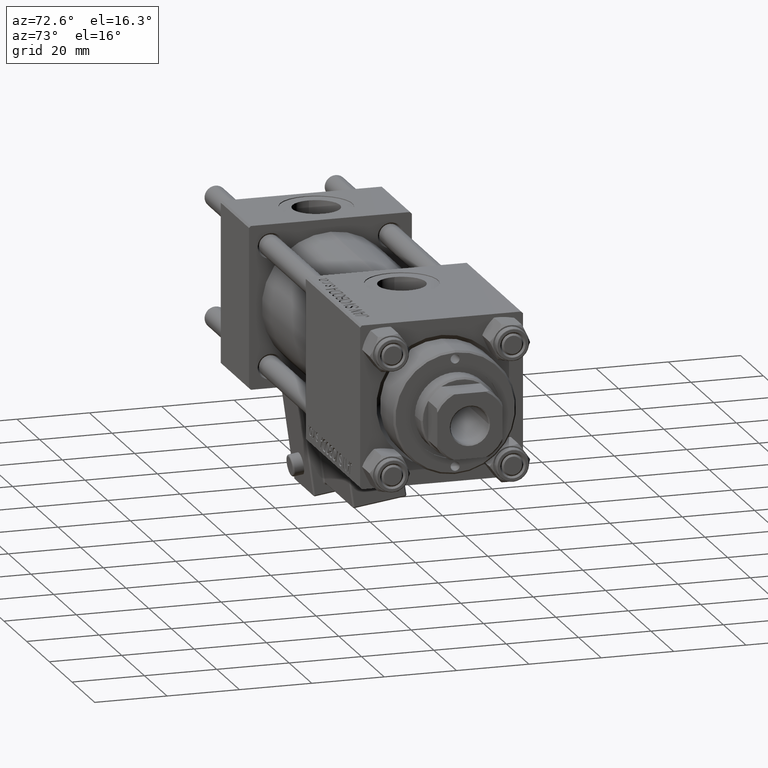
[diagram: clean part render]
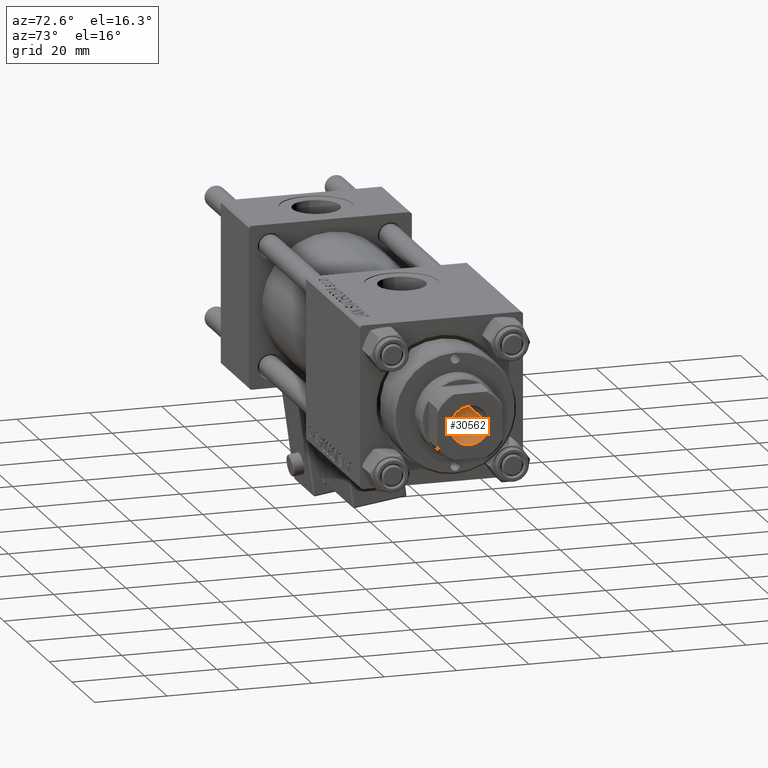
[diagram: same view with one face highlighted and labeled with its STEP entity id]
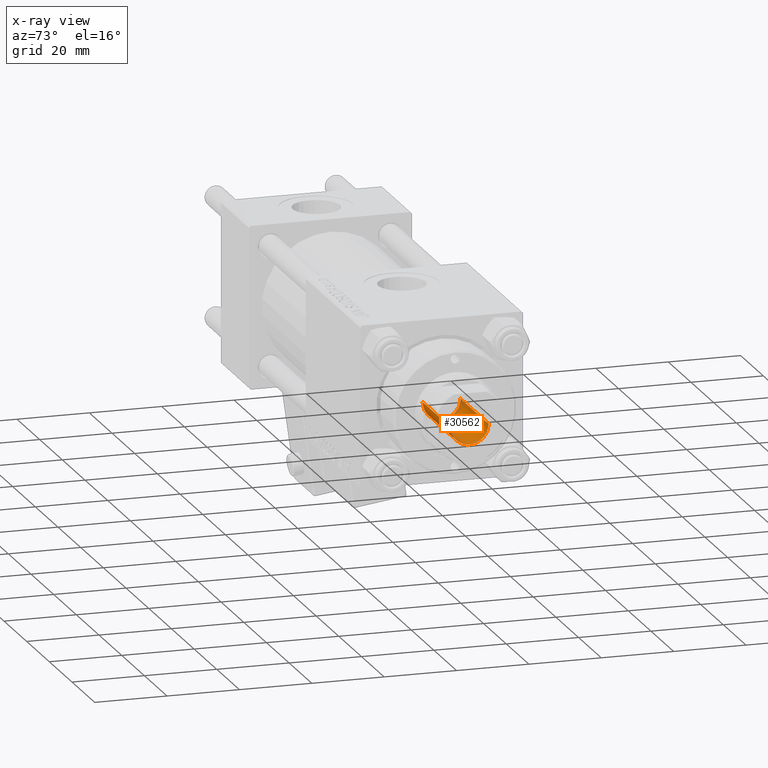
[diagram: x-ray of the same camera — body ghosted, the highlighted face saturated]
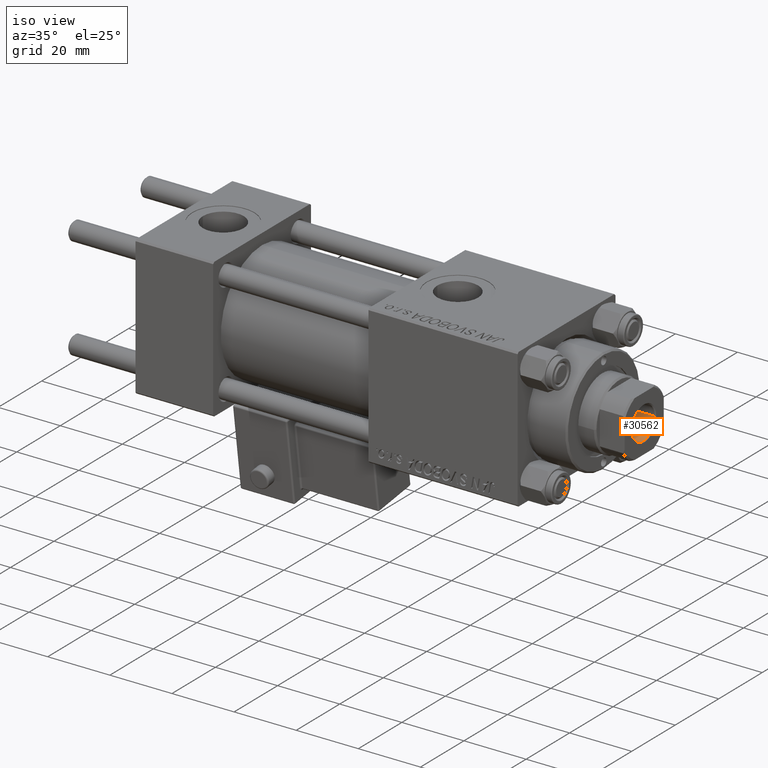
[diagram: same view with one face highlighted and labeled with its STEP entity id]
A machine part, auxiliary view. The second image highlights one B-rep face of the part: STEP entity #30562.
The next image is the same camera in x-ray: the body ghosted, the highlighted face saturated — about 7% of this face is hidden behind the body in this view.
A second angle (iso view) of the same face is appended — the face is thin or edge-on in the first view.
In plain terms, the highlighted cylindrical surface (edge-blend (fillet) strip) has radius 5.25 mm, axis along (1, 0, -0).
Its self-contained STEP definition (entity closure, byte-faithful):
#962 = DIRECTION ( 'NONE',  ( -0.000000000000000000, -0.000000000000000000, 1.000000000000000000 ) ) ;
#2312 = VERTEX_POINT ( 'NONE', #29662 ) ;
#2316 = EDGE_CURVE ( 'NONE', #30290, #2312, #34411, .T. ) ;
#2646 = CYLINDRICAL_SURFACE ( 'NONE', #49772, 5.249999999999997335 ) ;
#3364 = VECTOR ( 'NONE', #22251, 1000.000000000000000 ) ;
#4145 = EDGE_CURVE ( 'NONE', #42323, #30290, #5100, .T. ) ;
#4484 = DIRECTION ( 'NONE',  ( 1.000000000000000000, 0.000000000000000000, 0.000000000000000000 ) ) ;
#4686 = CIRCLE ( 'NONE', #37596, 5.249999999999997335 ) ;
#5100 = CIRCLE ( 'NONE', #8381, 5.249999999999995559 ) ;
#5495 = CARTESIAN_POINT ( 'NONE',  ( -5.249999999999995559, 6.429395695523600208E-16, 98.00000000000000000 ) ) ;
#5823 = CARTESIAN_POINT ( 'NONE',  ( 0.000000000000000000, 0.000000000000000000, 123.0000000000000000 ) ) ;
#8381 = AXIS2_PLACEMENT_3D ( 'NONE', #29308, #24546, #4484 ) ;
#10377 = CARTESIAN_POINT ( 'NONE',  ( -5.249999999999997335, 6.429395695523601195E-16, 123.0000000000000000 ) ) ;
#15394 = CARTESIAN_POINT ( 'NONE',  ( 5.249999999999995559, 0.000000000000000000, 98.00000000000000000 ) ) ;
#22251 = DIRECTION ( 'NONE',  ( -0.000000000000000000, -0.000000000000000000, 1.000000000000000000 ) ) ;
#22822 = EDGE_LOOP ( 'NONE', ( #44406, #34390, #47062, #43660 ) ) ;
#24546 = DIRECTION ( 'NONE',  ( -0.000000000000000000, -0.000000000000000000, 1.000000000000000000 ) ) ;
#26237 = CARTESIAN_POINT ( 'NONE',  ( 5.249999999999997335, 0.000000000000000000, 122.6999999999999744 ) ) ;
#26534 = VERTEX_POINT ( 'NONE', #26237 ) ;
#27519 = DIRECTION ( 'NONE',  ( 1.000000000000000000, 0.000000000000000000, 0.000000000000000000 ) ) ;
#29308 = CARTESIAN_POINT ( 'NONE',  ( 0.000000000000000000, 0.000000000000000000, 98.00000000000000000 ) ) ;
#29662 = CARTESIAN_POINT ( 'NONE',  ( -5.249999999999997335, 6.429395695523601195E-16, 122.6999999999999744 ) ) ;
#30290 = VERTEX_POINT ( 'NONE', #5495 ) ;
#30562 = ADVANCED_FACE ( 'NONE', ( #42022 ), #2646, .F. ) ;
#31483 = DIRECTION ( 'NONE',  ( 0.000000000000000000, 0.000000000000000000, 1.000000000000000000 ) ) ;
#32268 = VECTOR ( 'NONE', #962, 1000.000000000000000 ) ;
#34390 = ORIENTED_EDGE ( 'NONE', *, *, #4145, .F. ) ;
#34411 = LINE ( 'NONE', #10377, #3364 ) ;
#36917 = CARTESIAN_POINT ( 'NONE',  ( 5.249999999999997335, 0.000000000000000000, 123.0000000000000000 ) ) ;
#37596 = AXIS2_PLACEMENT_3D ( 'NONE', #43912, #31483, #27519 ) ;
#38417 = EDGE_CURVE ( 'NONE', #42323, #26534, #44837, .T. ) ;
#42022 = FACE_OUTER_BOUND ( 'NONE', #22822, .T. ) ;
#42323 = VERTEX_POINT ( 'NONE', #15394 ) ;
#43660 = ORIENTED_EDGE ( 'NONE', *, *, #49165, .T. ) ;
#43912 = CARTESIAN_POINT ( 'NONE',  ( 0.000000000000000000, 0.000000000000000000, 122.6999999999999744 ) ) ;
#44406 = ORIENTED_EDGE ( 'NONE', *, *, #2316, .F. ) ;
#44837 = LINE ( 'NONE', #36917, #32268 ) ;
#47062 = ORIENTED_EDGE ( 'NONE', *, *, #38417, .T. ) ;
#49165 = EDGE_CURVE ( 'NONE', #26534, #2312, #4686, .T. ) ;
#49772 = AXIS2_PLACEMENT_3D ( 'NONE', #5823, #51280, #50239 ) ;
#50239 = DIRECTION ( 'NONE',  ( 1.000000000000000000, 0.000000000000000000, 0.000000000000000000 ) ) ;
#51280 = DIRECTION ( 'NONE',  ( -0.000000000000000000, -0.000000000000000000, 1.000000000000000000 ) ) ;